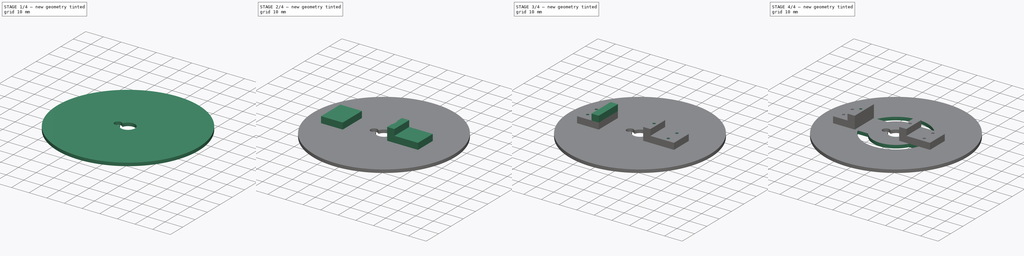
[diagram: build sequence overview — one tinted view per stage of 4, left to right]
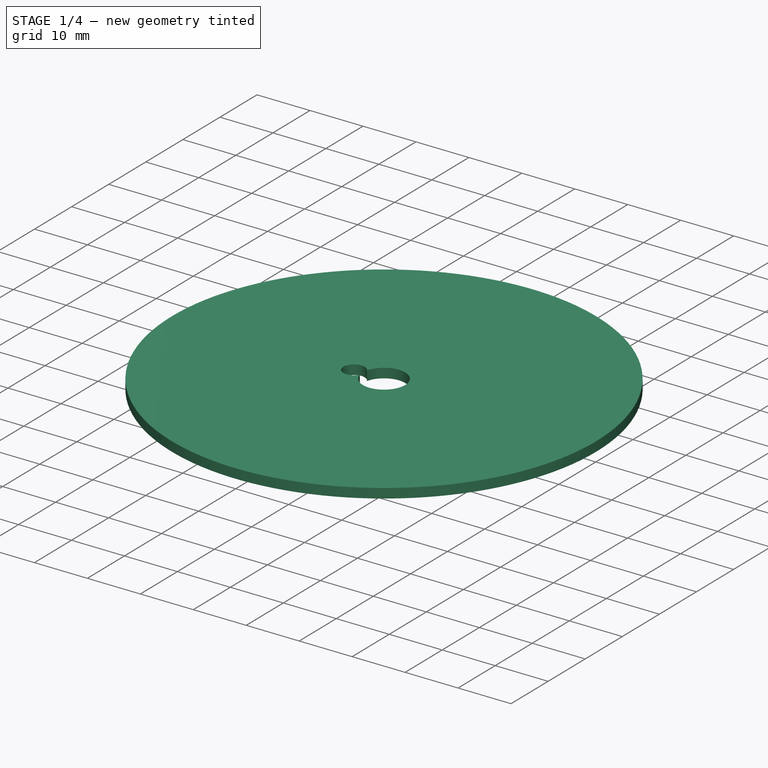
[diagram: stage 1 of 4 — iso view after this stage's code; geometry added in this stage tinted green]
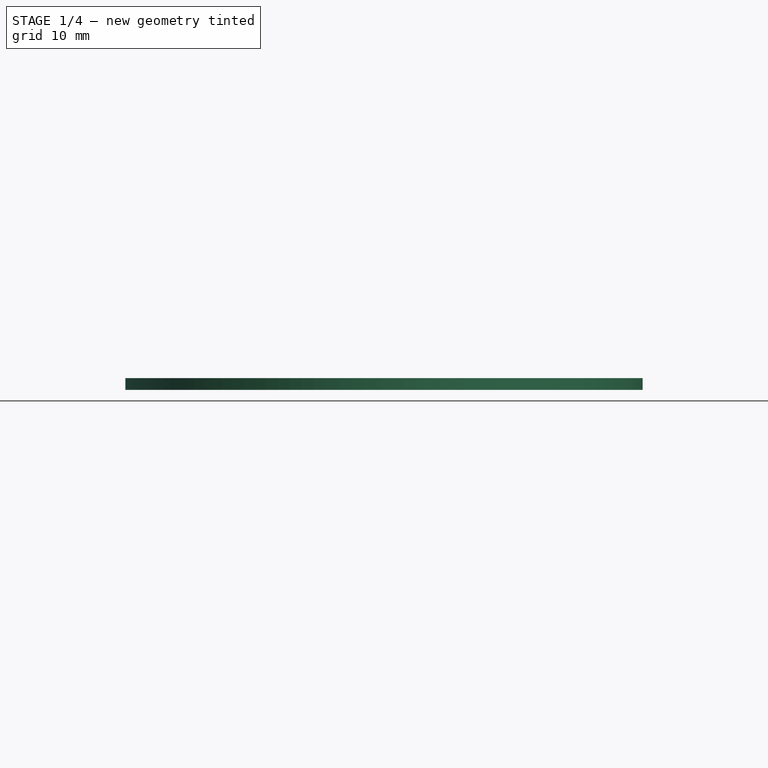
[diagram: stage 1 of 4 — front view after this stage's code; geometry added in this stage tinted green]
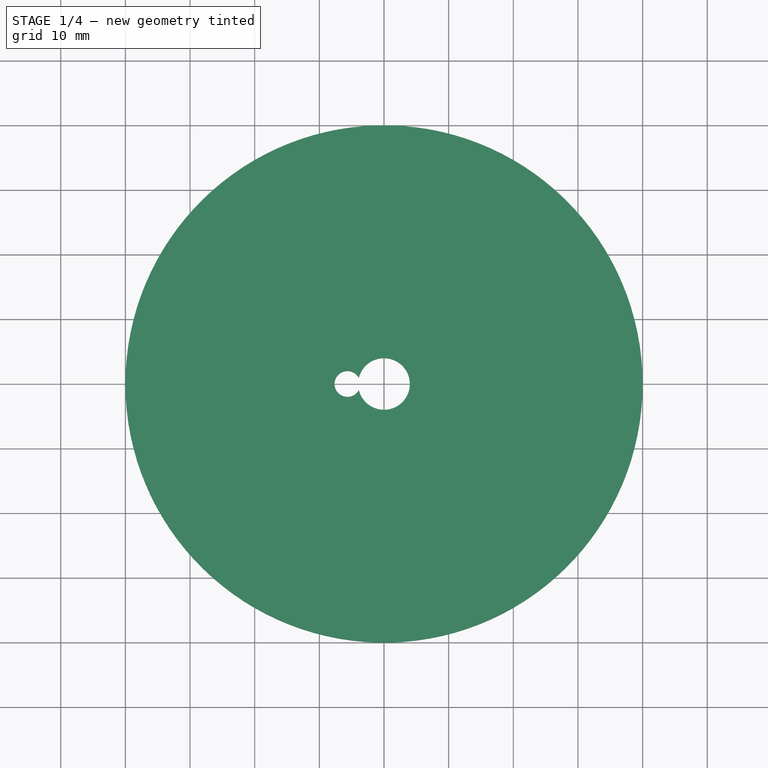
[diagram: stage 1 of 4 — top view after this stage's code; geometry added in this stage tinted green]
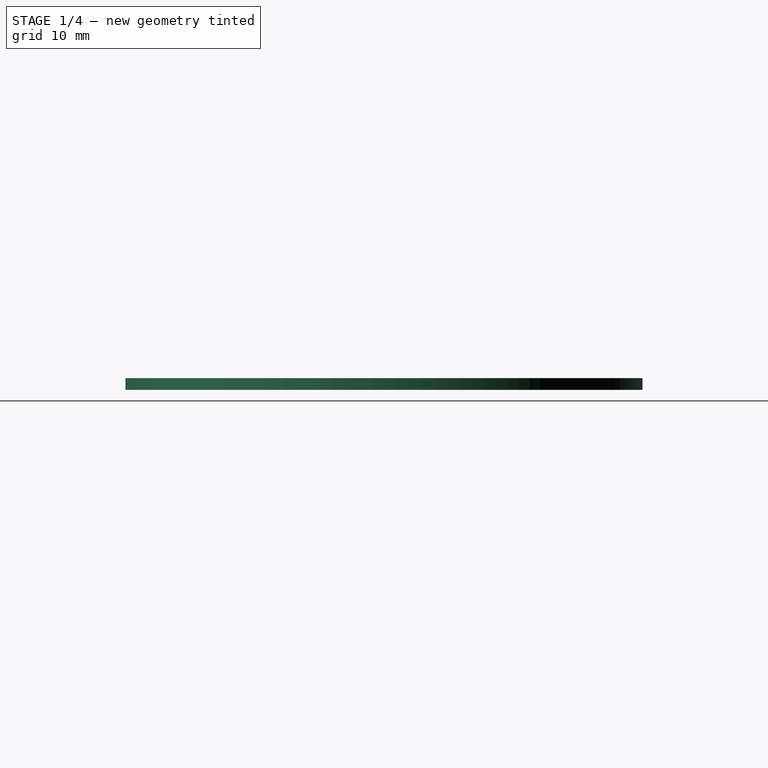
[diagram: stage 1 of 4 — right view after this stage's code; geometry added in this stage tinted green]
FCSTD DOCUMENT  (FreeCAD 0.16R4928 (Git))
Label: rotating_plate
License: All rights reserved
LicenseURL: http://en.wikipedia.org/wiki/All_rights_reserved
objects: Sketcher::SketchObject×10, PartDesign::Pocket×6, PartDesign::Pad×4
note: 30 computed .brp shape members not serialized (recipe doc carries the construction recipe); baked Part::Feature solids carry a one-line shape summary decoded from their .brp

FEATURE [Sketcher::SketchObject] Sketch
  sketch-geometry (1):
    g0: Circle CenterX=0 CenterY=0 CenterZ=0 NormalX=0 NormalY=0 NormalZ=1 Radius=40
  constraints (2):
    c: Coincident(g0,g-1)
    c: Radius(g0) = 40
FEATURE [PartDesign::Pad] Pad
  Length = 1.8
  Length2 = 100
  Sketch = -> Sketch
  Type = 0
FEATURE [Sketcher::SketchObject] Sketch001
  Placement = pos=(0,0,1.8) rot=(0,0,1;0rad)
  Support = -> Pad [Face3]
  sketch-geometry (5):
    g0: Circle [constr] CenterX=0 CenterY=0 CenterZ=0 NormalX=0 NormalY=0 NormalZ=1 Radius=4
    g1: LineSegment [constr] StartX=0 StartY=0 StartZ=0 EndX=-5.65 EndY=0 EndZ=0
    g2: Circle [constr] CenterX=-5.65 CenterY=0 CenterZ=0 NormalX=0 NormalY=0 NormalZ=1 Radius=2
    g3: ArcOfCircle CenterX=0 CenterY=0 CenterZ=0 NormalX=0 NormalY=0 NormalZ=1 Radius=4 StartAngle=3.37991 EndAngle=9.18646
    g4: ArcOfCircle CenterX=-5.65 CenterY=0 CenterZ=0 NormalX=0 NormalY=0 NormalZ=1 Radius=2 StartAngle=0.491711 EndAngle=5.79147
  constraints (14):
    c: Coincident(g0,g-1)
    c: Radius(g0) = 4
    c: Coincident(g1,g-1)
    c: Horizontal(g1)
    c: Coincident(g2,g1)
    c: Distance(g1) = 5.65
    c: Radius(g2) = 2
    c: Coincident(g3,g-1)
    c: PointOnObject(g3,g0)
    c: PointOnObject(g3,g2)
    c: PointOnObject(g3,g2)
    c: Coincident(g4,g1)
    c: Coincident(g4,g3)
    c: Coincident(g4,g3)
FEATURE [PartDesign::Pocket] Pocket
  Length = 5
  Sketch = -> Sketch001
  Type = 1
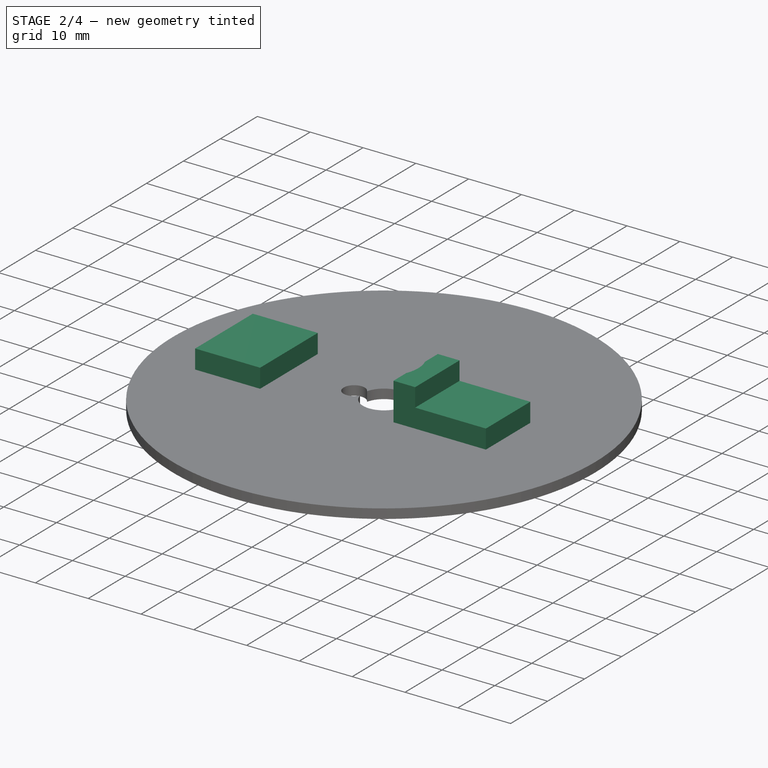
[diagram: stage 2 of 4 — iso view after this stage's code; geometry added in this stage tinted green]
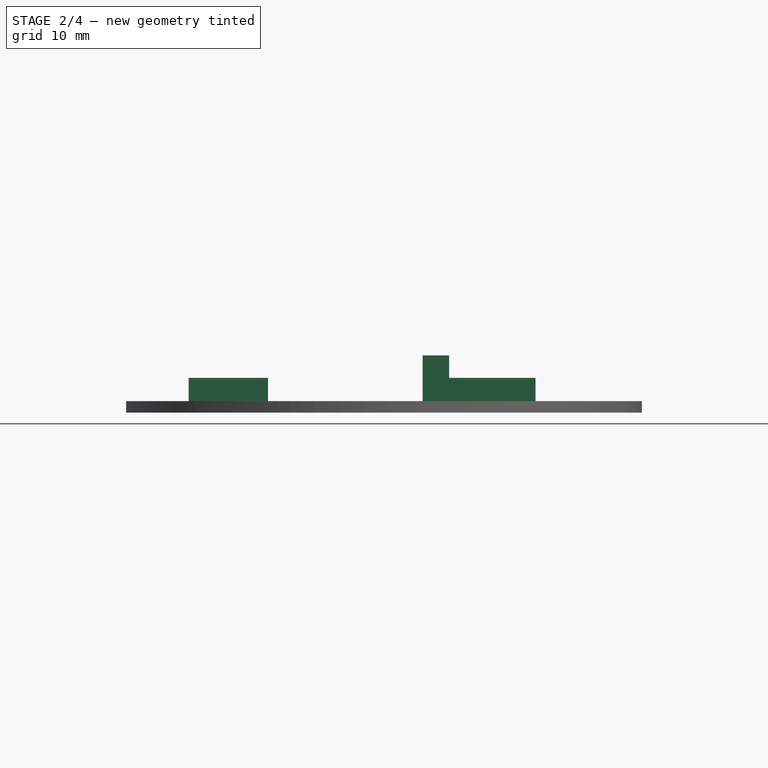
[diagram: stage 2 of 4 — front view after this stage's code; geometry added in this stage tinted green]
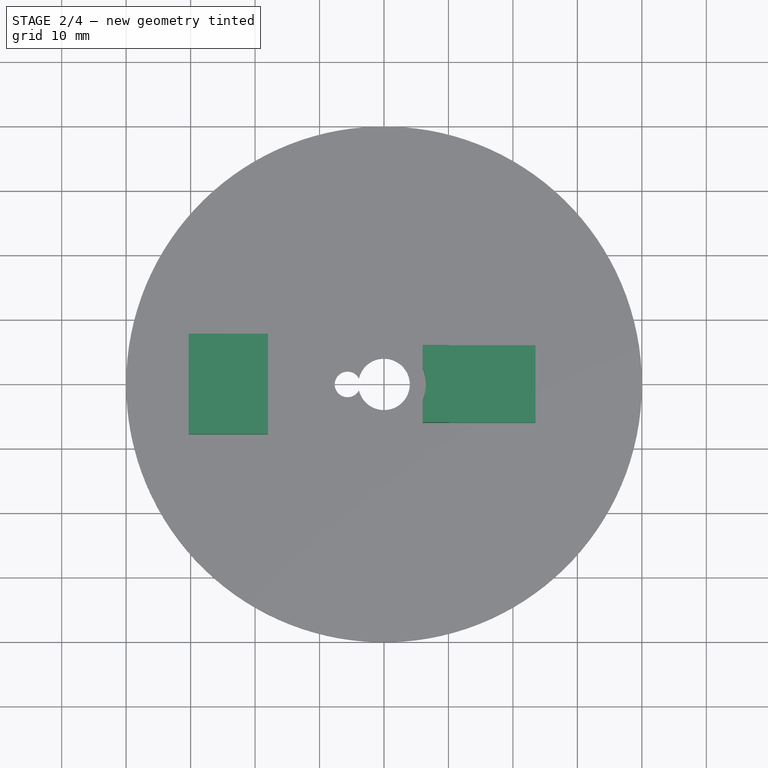
[diagram: stage 2 of 4 — top view after this stage's code; geometry added in this stage tinted green]
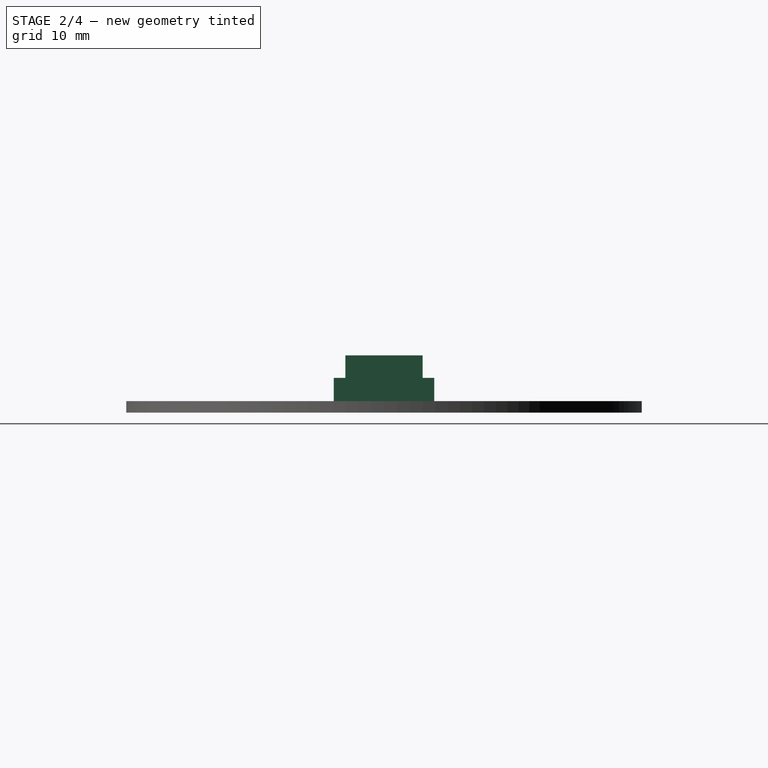
[diagram: stage 2 of 4 — right view after this stage's code; geometry added in this stage tinted green]
FEATURE [Sketcher::SketchObject] Sketch002
  Placement = pos=(0,0,1.8) rot=(0,0,1;0rad)
  Support = -> Pocket [Face3]
  sketch-geometry (8):
    g0: LineSegment StartX=23.5 StartY=6 StartZ=0 EndX=23.5 EndY=-6 EndZ=0
    g1: LineSegment StartX=23.5 StartY=6 StartZ=0 EndX=6 EndY=6 EndZ=0
    g2: LineSegment StartX=6 StartY=-6 StartZ=0 EndX=23.5 EndY=-6 EndZ=0
    g3: LineSegment StartX=-18 StartY=7.8 StartZ=0 EndX=-30.3 EndY=7.8 EndZ=0
    g4: LineSegment StartX=-30.3 StartY=7.8 StartZ=0 EndX=-30.3 EndY=-7.8 EndZ=0
    g5: LineSegment StartX=-30.3 StartY=-7.8 StartZ=0 EndX=-18 EndY=-7.8 EndZ=0
    g6: LineSegment StartX=-18 StartY=-7.8 StartZ=0 EndX=-18 EndY=7.8 EndZ=0
    g7: LineSegment StartX=6 StartY=6 StartZ=0 EndX=6 EndY=-6 EndZ=0
  constraints (23):
    c: Symmetric(g0,g0,g-1)
    c: DistanceX(g-1,g0) = 23.5
    c: Distance(g0) = 12
    c: Coincident(g1,g0)
    c: Horizontal(g1)
    c: Coincident(g2,g0)
    c: Horizontal(g2)
    c: Equal(g2,g1)
    c: Coincident(g3,g4)
    c: Coincident(g4,g5)
    c: Coincident(g5,g6)
    c: Coincident(g6,g3)
    c: Horizontal(g3)
    c: Horizontal(g5)
    c: Vertical(g4)
    c: Vertical(g6)
    c: Symmetric(g5,g3,g-1)
    c: DistanceX(g-1,g5) = -18
    c: Distance(g5) = 12.3
    c: Distance(g6) = 15.6
    c: Coincident(g7,g1)
    c: Coincident(g7,g2)
    c: DistanceX(g-1,g2) = 6
FEATURE [PartDesign::Pad] Pad001
  Length = 3.6
  Length2 = 100
  Sketch = -> Sketch002
  Type = 0
FEATURE [Sketcher::SketchObject] Sketch003
  ExternalGeometry = -> [Pad001]
  Placement = pos=(0,0,5.4) rot=(0,0,1;0rad)
  Support = -> Pad001 [Face15]
  sketch-geometry (4):
    g0: LineSegment StartX=6 StartY=-6 StartZ=0 EndX=10.1 EndY=-6 EndZ=0
    g1: LineSegment StartX=10.1 StartY=-6 StartZ=0 EndX=10.1 EndY=6 EndZ=0
    g2: LineSegment StartX=10.1 StartY=6 StartZ=0 EndX=6 EndY=6 EndZ=0
    g3: LineSegment StartX=6 StartY=6 StartZ=0 EndX=6 EndY=-6 EndZ=0
  constraints (11):
    c: Coincident(g0,g1)
    c: Coincident(g1,g2)
    c: Coincident(g2,g3)
    c: Coincident(g3,g0)
    c: Horizontal(g0)
    c: Horizontal(g2)
    c: Vertical(g1)
    c: Vertical(g3)
    c: Coincident(g0,g-4)
    c: PointOnObject(g-3,g2)
    c: Distance(g0) = 4.1
FEATURE [PartDesign::Pad] Pad002
  Length = 3.5
  Length2 = 100
  Sketch = -> Sketch003
  Type = 0
FEATURE [Sketcher::SketchObject] Sketch004
  ExternalGeometry = -> [Pad002]
  Placement = pos=(0,0,8.9) rot=(0,0,1;0rad)
  Support = -> Pad002 [Face20]
  sketch-geometry (2):
    g0: ArcOfCircle CenterX=0 CenterY=0 CenterZ=0 NormalX=0 NormalY=0 NormalZ=1 Radius=6.5 StartAngle=5.88839 EndAngle=6.67798
    g1: LineSegment StartX=6 StartY=2.5 StartZ=0 EndX=6 EndY=-2.5 EndZ=0
  constraints (6):
    c: Coincident(g0,g-1)
    c: PointOnObject(g0,g-3)
    c: PointOnObject(g0,g-3)
    c: Radius(g0) = 6.5
    c: Coincident(g1,g0)
    c: Coincident(g1,g0)
FEATURE [PartDesign::Pocket] Pocket001
  Length = 7.1
  Sketch = -> Sketch004
  Type = 0
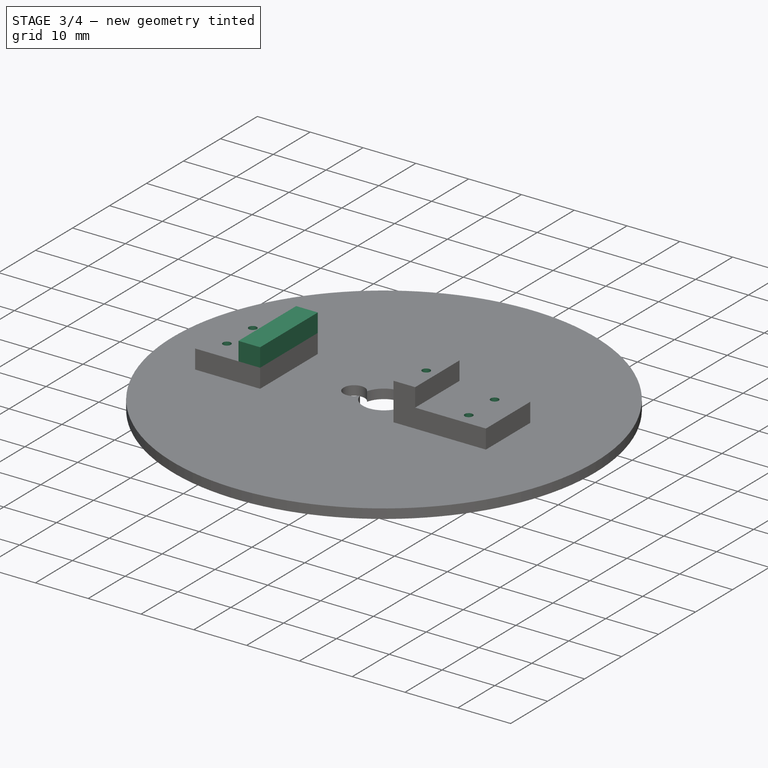
[diagram: stage 3 of 4 — iso view after this stage's code; geometry added in this stage tinted green]
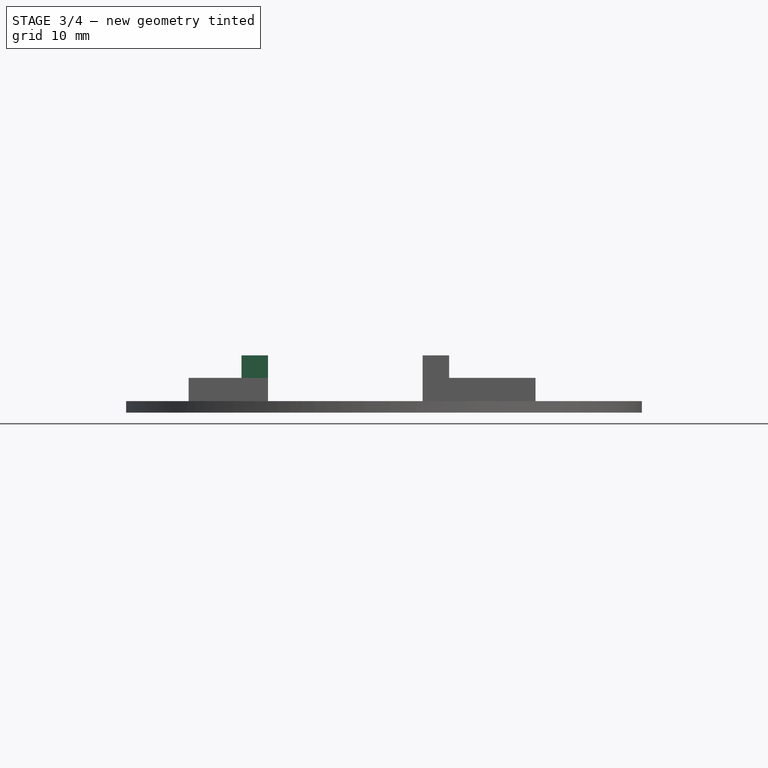
[diagram: stage 3 of 4 — front view after this stage's code; geometry added in this stage tinted green]
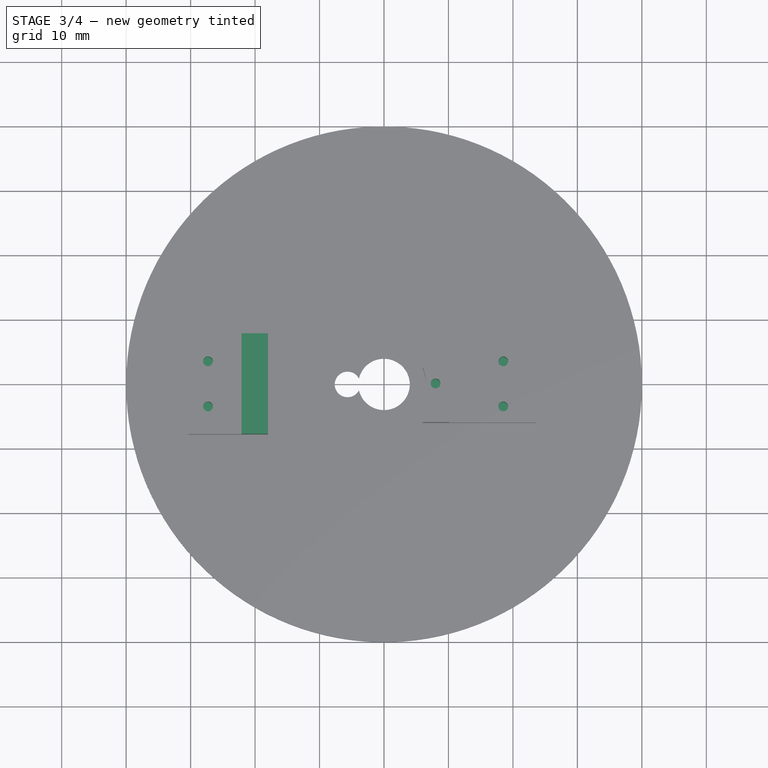
[diagram: stage 3 of 4 — top view after this stage's code; geometry added in this stage tinted green]
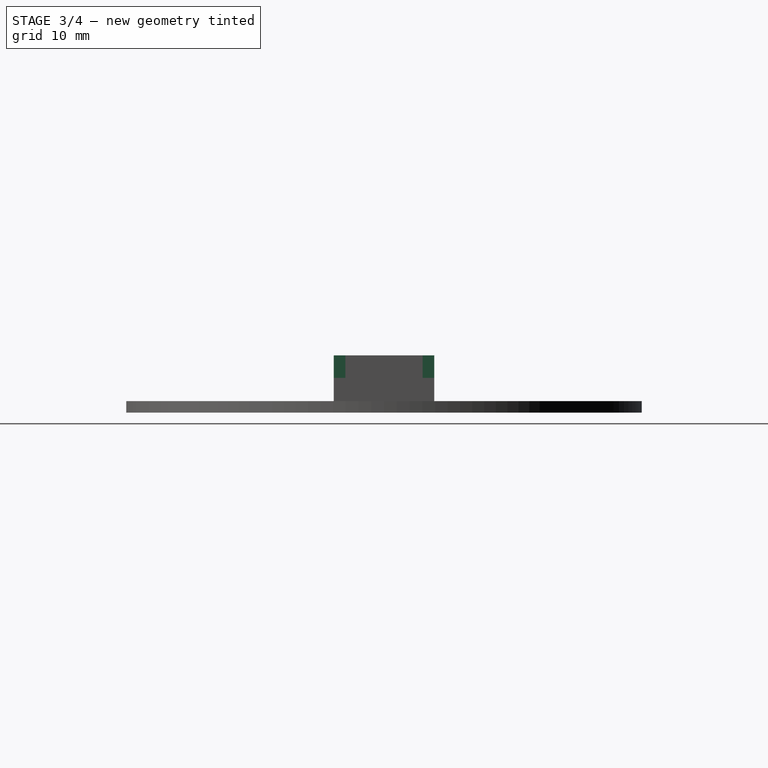
[diagram: stage 3 of 4 — right view after this stage's code; geometry added in this stage tinted green]
FEATURE [Sketcher::SketchObject] Sketch005
  Placement = pos=(0,0,5.4) rot=(0,0,1;0rad)
  Support = -> Pocket001 [Face16]
  sketch-geometry (4):
    g0: Circle CenterX=-27.3 CenterY=3.5 CenterZ=0 NormalX=0 NormalY=0 NormalZ=1 Radius=0.75
    g1: Circle CenterX=-27.3 CenterY=-3.5 CenterZ=0 NormalX=0 NormalY=0 NormalZ=1 Radius=0.75
    g2: Circle CenterX=18.5 CenterY=3.5 CenterZ=0 NormalX=0 NormalY=0 NormalZ=1 Radius=0.75
    g3: Circle CenterX=18.5 CenterY=-3.5 CenterZ=0 NormalX=0 NormalY=0 NormalZ=1 Radius=0.75
  constraints (10):
    c: Equal(g1,g0)
    c: Equal(g0,g2)
    c: Equal(g2,g3)
    c: Radius(g1) = 0.75
    c: Symmetric(g3,g2,g-1)
    c: Symmetric(g1,g0,g-1)
    c: DistanceY(g0,g1) = -7
    c: DistanceY(g2,g3) = -7
    c: DistanceX(g-1,g0) = -27.3
    c: DistanceX(g-1,g2) = 18.5
FEATURE [PartDesign::Pocket] Pocket002
  Length = 5
  Sketch = -> Sketch005
  Type = 0
FEATURE [Sketcher::SketchObject] Sketch006
  Placement = pos=(0,0,8.9) rot=(0,0,1;0rad)
  Support = -> Pocket002 [Face28]
  sketch-geometry (1):
    g0: Circle CenterX=8 CenterY=0 CenterZ=0 NormalX=0 NormalY=0 NormalZ=1 Radius=0.75
  constraints (3):
    c: PointOnObject(g0,g-1)
    c: Radius(g0) = 0.75
    c: DistanceX(g-1,g0) = 8
FEATURE [PartDesign::Pocket] Pocket003
  Length = 5
  Sketch = -> Sketch006
  Type = 0
FEATURE [Sketcher::SketchObject] Sketch007
  ExternalGeometry = -> [Pocket003]
  Placement = pos=(0,0,5.4) rot=(0,0,1;0rad)
  Support = -> Pocket003 [Face16]
  sketch-geometry (4):
    g0: LineSegment StartX=-18 StartY=7.8 StartZ=0 EndX=-22.1 EndY=7.8 EndZ=0
    g1: LineSegment StartX=-22.1 StartY=7.8 StartZ=0 EndX=-22.1 EndY=-7.8 EndZ=0
    g2: LineSegment StartX=-22.1 StartY=-7.8 StartZ=0 EndX=-18 EndY=-7.8 EndZ=0
    g3: LineSegment StartX=-18 StartY=-7.8 StartZ=0 EndX=-18 EndY=7.8 EndZ=0
  constraints (11):
    c: Coincident(g0,g1)
    c: Coincident(g1,g2)
    c: Coincident(g2,g3)
    c: Coincident(g3,g0)
    c: Horizontal(g0)
    c: Horizontal(g2)
    c: Vertical(g1)
    c: Vertical(g3)
    c: Coincident(g0,g-3)
    c: PointOnObject(g-3,g2)
    c: Distance(g2) = 4.1
FEATURE [PartDesign::Pad] Pad003
  Length = 3.5
  Length2 = 100
  Sketch = -> Sketch007
  Type = 0
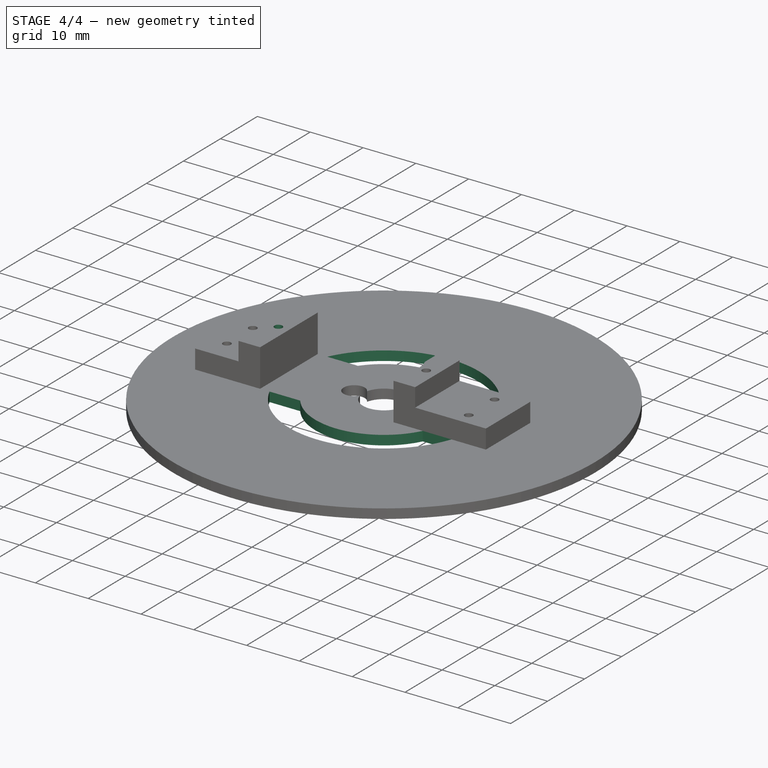
[diagram: stage 4 of 4 — iso view after this stage's code; geometry added in this stage tinted green]
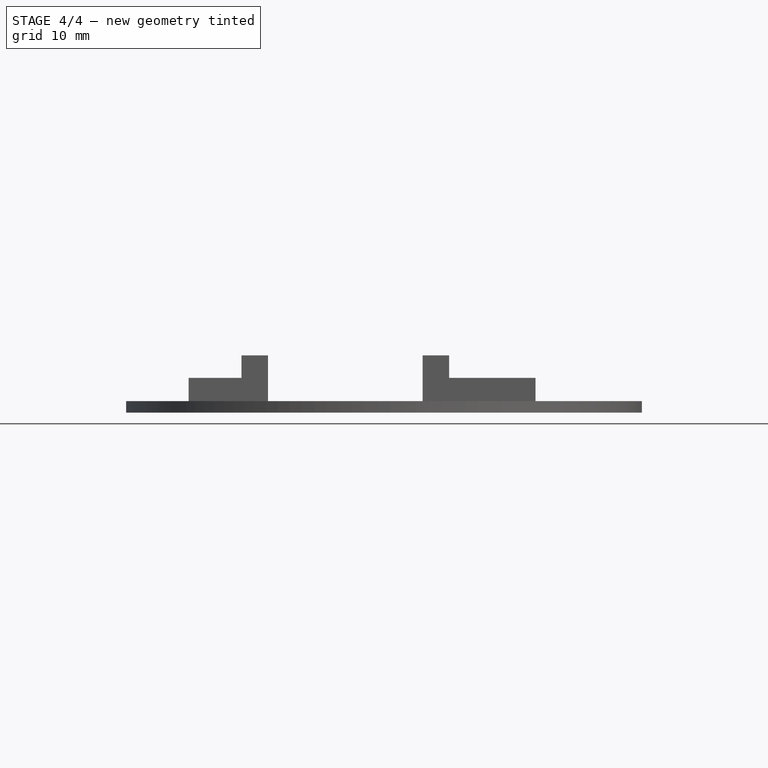
[diagram: stage 4 of 4 — front view after this stage's code; geometry added in this stage tinted green]
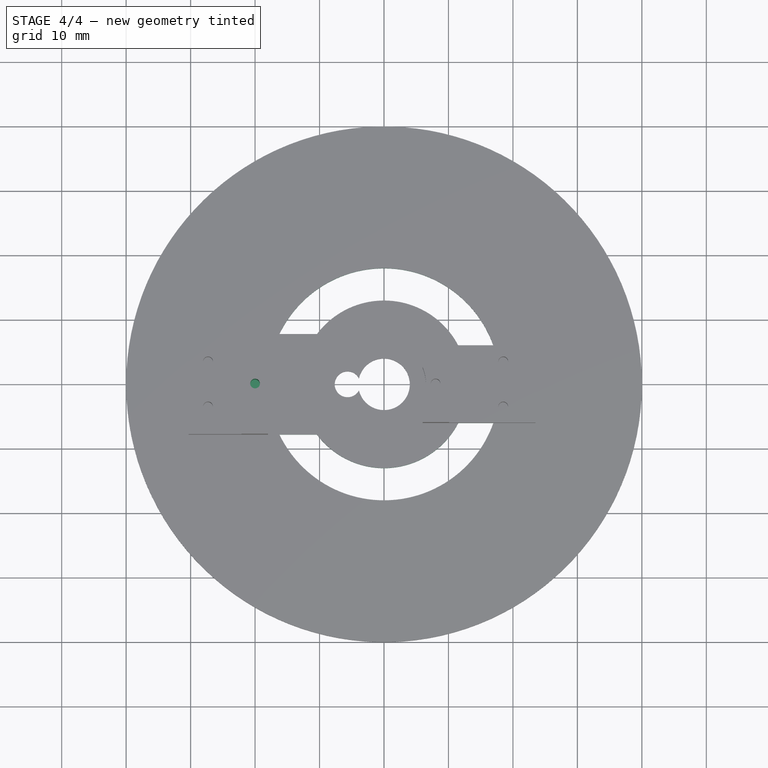
[diagram: stage 4 of 4 — top view after this stage's code; geometry added in this stage tinted green]
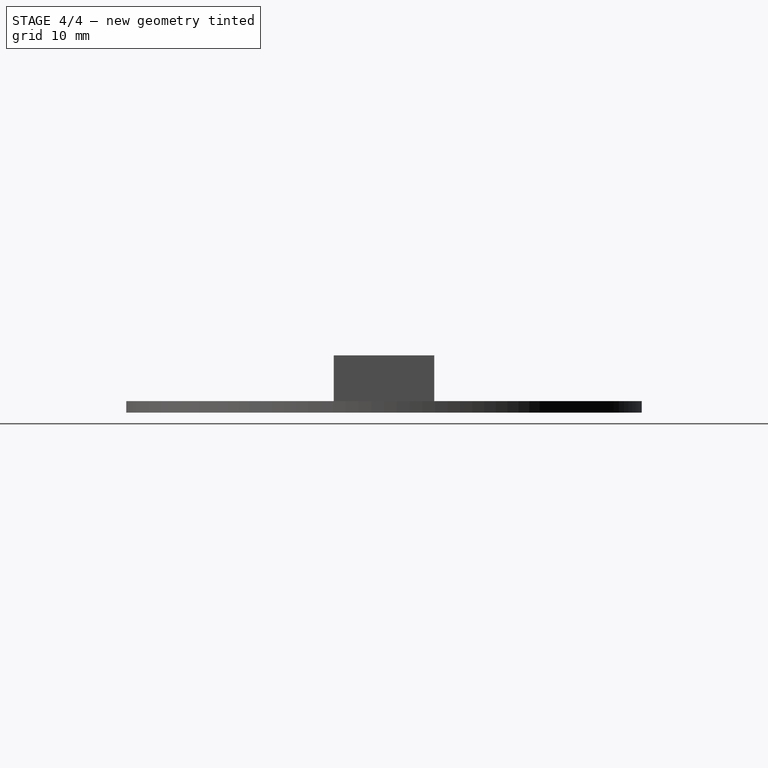
[diagram: stage 4 of 4 — right view after this stage's code; geometry added in this stage tinted green]
FEATURE [Sketcher::SketchObject] Sketch008
  Placement = pos=(0,0,8.9) rot=(0,0,1;0rad)
  Support = -> Pad003 [Face29]
  sketch-geometry (1):
    g0: Circle CenterX=-20 CenterY=0 CenterZ=0 NormalX=0 NormalY=0 NormalZ=1 Radius=0.75
  constraints (3):
    c: PointOnObject(g0,g-1)
    c: Radius(g0) = 0.75
    c: DistanceX(g-1,g0) = -20
FEATURE [PartDesign::Pocket] Pocket004
  Length = 8
  Sketch = -> Sketch008
  Type = 0
FEATURE [Sketcher::SketchObject] Sketch009
  ExternalGeometry = -> [Pocket004]
  Placement = pos=(0,0,1.8) rot=(0,0,1;0rad)
  Support = -> Pocket004 [Face3]
  sketch-geometry (9):
    g0: ArcOfCircle CenterX=0 CenterY=0 CenterZ=0 NormalX=0 NormalY=0 NormalZ=1 Radius=18 StartAngle=0.339837 EndAngle=2.6934
    g1: ArcOfCircle CenterX=0 CenterY=0 CenterZ=0 NormalX=0 NormalY=0 NormalZ=1 Radius=13 StartAngle=0.479729 EndAngle=2.49809
    g2: LineSegment StartX=-16.2222 StartY=7.8 StartZ=0 EndX=-10.4 EndY=7.8 EndZ=0
    g3: ArcOfCircle CenterX=0 CenterY=0 CenterZ=0 NormalX=0 NormalY=0 NormalZ=1 Radius=13 StartAngle=3.78509 EndAngle=5.80346
    g4: ArcOfCircle CenterX=0 CenterY=0 CenterZ=0 NormalX=0 NormalY=0 NormalZ=1 Radius=18 StartAngle=3.58978 EndAngle=5.94335
    g5: LineSegment StartX=-16.2222 StartY=-7.8 StartZ=0 EndX=-10.4 EndY=-7.8 EndZ=0
    g6: LineSegment [constr] StartX=11.5326 StartY=6 StartZ=0 EndX=11.5326 EndY=-6 EndZ=0
    g7: LineSegment StartX=11.5326 StartY=6 StartZ=0 EndX=16.9706 EndY=6 EndZ=0
    g8: LineSegment StartX=11.5326 StartY=-6 StartZ=0 EndX=16.9706 EndY=-6 EndZ=0
  constraints (24):
    c: Coincident(g1,g-1)
    c: Coincident(g0,g-1)
    c: Radius(g1) = 13
    c: Radius(g0) = 18
    c: Coincident(g2,g0)
    c: Coincident(g2,g1)
    c: Coincident(g3,g-1)
    c: Coincident(g4,g-1)
    c: Coincident(g5,g4)
    c: Coincident(g5,g3)
    c: Equal(g5,g2)
    c: Coincident(g6,g1)
    c: Coincident(g6,g3)
    c: Vertical(g6)
    c: Coincident(g7,g1)
    c: Coincident(g7,g0)
    c: Coincident(g8,g3)
    c: Coincident(g8,g4)
    c: Horizontal(g7)
    c: Horizontal(g8)
    c: Symmetric(g4,g0,g-1)
    c: DistanceY(g-1,g1) = 6
    c: DistanceY(g1,g3) = -15.6
    c: Symmetric(g0,g4,g-1)
FEATURE [PartDesign::Pocket] Pocket005
  Length = 5
  Sketch = -> Sketch009
  Type = 1
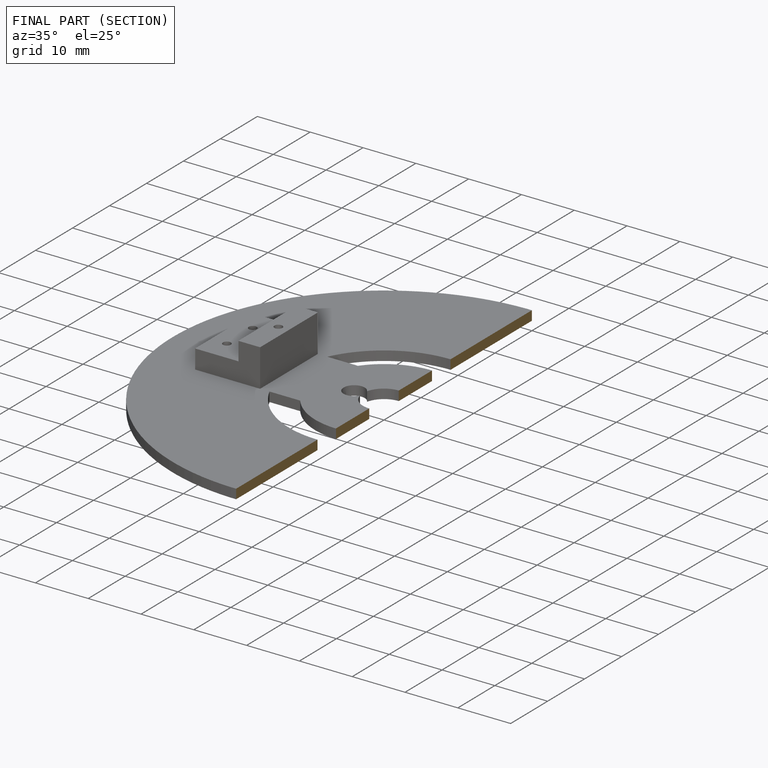
[diagram: finished part — half-section view (interior)]
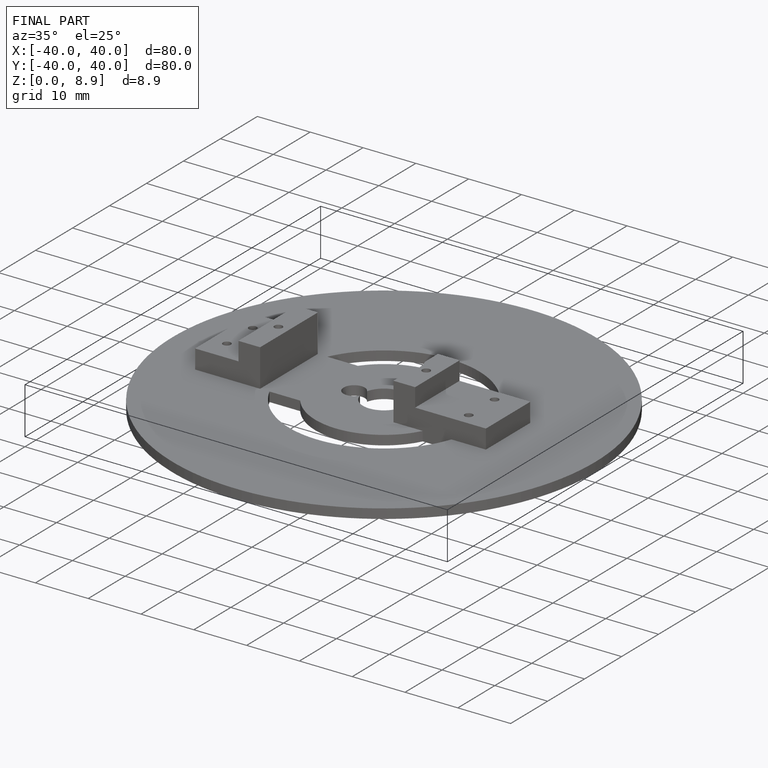
[diagram: finished part — iso view with bounding-box wireframe]
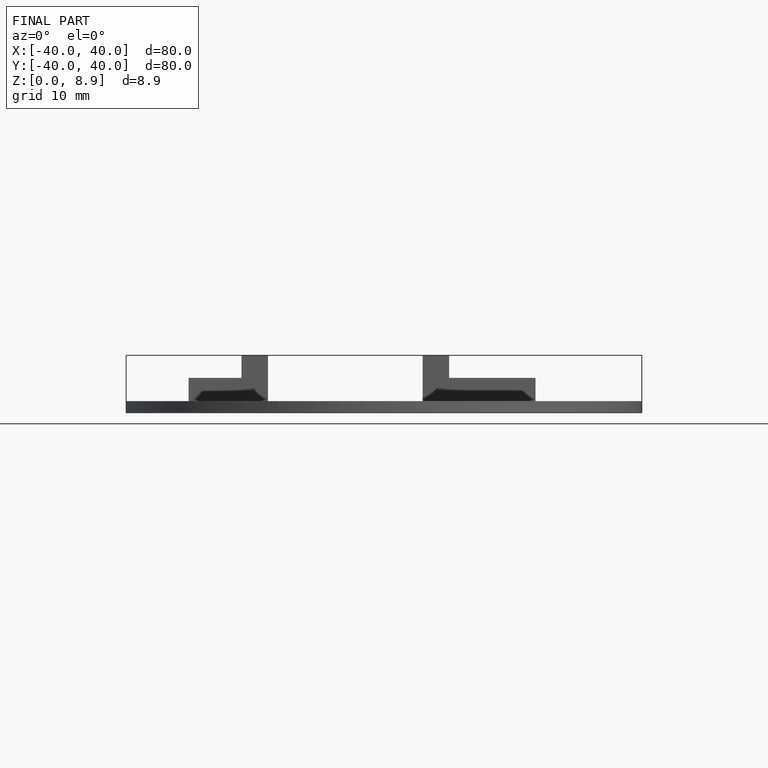
[diagram: finished part — front view with bounding-box wireframe]
